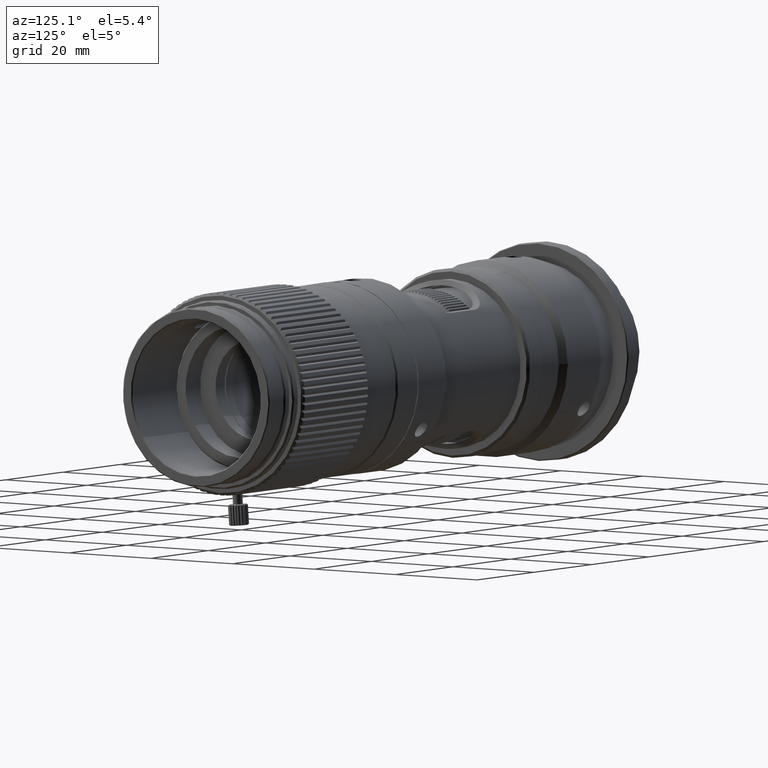
[diagram: clean part render]
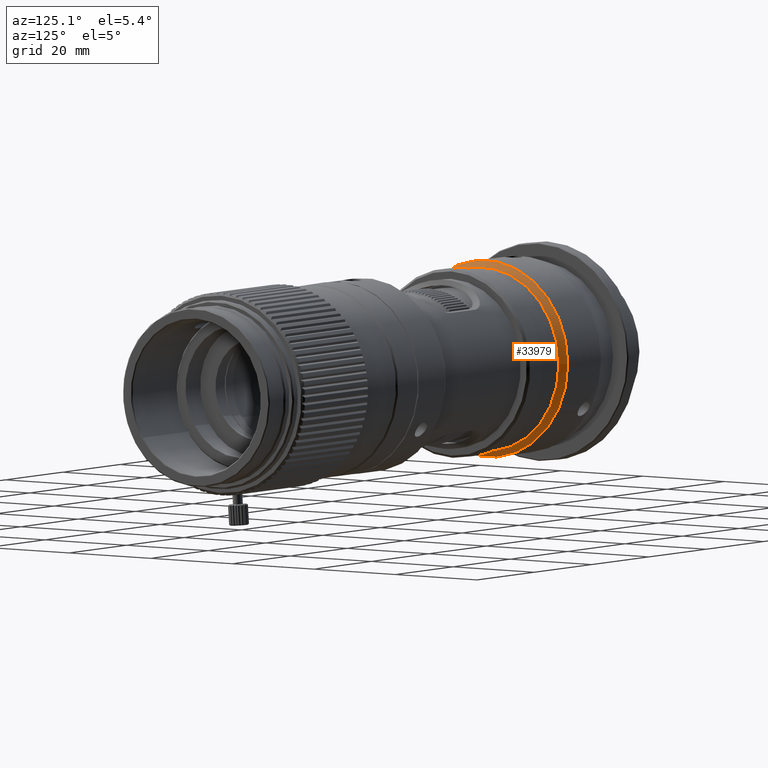
[diagram: same view with one face highlighted and labeled with its STEP entity id]
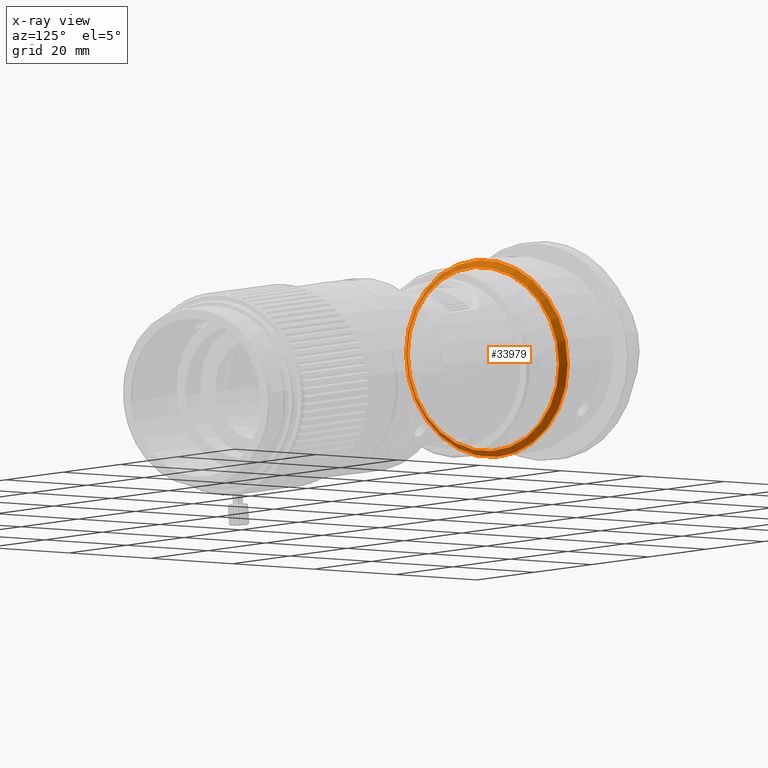
[diagram: x-ray of the same camera — body ghosted, the highlighted face saturated]
A machine part, auxiliary view. The second image highlights one B-rep face of the part: STEP entity #33979.
The next image is the same camera in x-ray: the body ghosted, the highlighted face saturated — about 17% of this face is hidden behind the body in this view.
In plain terms, the highlighted conical surface has half-angle 45 deg.
Its self-contained STEP definition (entity closure, byte-faithful):
#2436 = CARTESIAN_POINT ( 'NONE',  ( 22.98312653004905215, 26.11023935412959673, 15.71905592086952907 ) ) ;
#2550 = CARTESIAN_POINT ( 'NONE',  ( 24.25812653004727437, 26.11023935412959673, 15.71905592086952907 ) ) ;
#3859 = DIRECTION ( 'NONE',  ( 0.000000000000000000, 1.000000000000000000, 0.000000000000000000 ) ) ;
#8387 = DIRECTION ( 'NONE',  ( -1.000000000000000000, 1.750036293545255551E-16, -1.750036293545403216E-16 ) ) ;
#8705 = EDGE_LOOP ( 'NONE', ( #30990 ) ) ;
#10510 = EDGE_CURVE ( 'NONE', #18908, #18908, #33579, .T. ) ;
#12721 = DIRECTION ( 'NONE',  ( 1.000000000000000000, -1.629750780107577912E-16, 2.465190328815661892E-32 ) ) ;
#14270 = CARTESIAN_POINT ( 'NONE',  ( 22.98312653004956729, 45.93523935412824244, 15.71905592086952907 ) ) ;
#14516 = AXIS2_PLACEMENT_3D ( 'NONE', #25239, #17171, #3859 ) ;
#15758 = FACE_OUTER_BOUND ( 'NONE', #25354, .T. ) ;
#17171 = DIRECTION ( 'NONE',  ( 1.000000000000000000, -1.750036293545128840E-16, 2.465190328815661892E-32 ) ) ;
#17265 = CONICAL_SURFACE ( 'NONE', #28476, 19.82499999999916440, 0.7853981633974537191 ) ;
#18908 = VERTEX_POINT ( 'NONE', #32552 ) ;
#19543 = VERTEX_POINT ( 'NONE', #14270 ) ;
#24129 = ORIENTED_EDGE ( 'NONE', *, *, #34649, .T. ) ;
#25239 = CARTESIAN_POINT ( 'NONE',  ( 22.98312653004956729, 26.11023935412959673, 15.71905592086952907 ) ) ;
#25354 = EDGE_LOOP ( 'NONE', ( #24129 ) ) ;
#28476 = AXIS2_PLACEMENT_3D ( 'NONE', #2436, #8387, #31862 ) ;
#29015 = DIRECTION ( 'NONE',  ( -1.870321806983080362E-16, -1.000000000000000000, 0.000000000000000000 ) ) ;
#29659 = AXIS2_PLACEMENT_3D ( 'NONE', #2550, #12721, #29015 ) ;
#30990 = ORIENTED_EDGE ( 'NONE', *, *, #10510, .F. ) ;
#31862 = DIRECTION ( 'NONE',  ( -1.750036293545402477E-16, 0.000000000000000000, 1.000000000000000000 ) ) ;
#32382 = FACE_BOUND ( 'NONE', #8705, .T. ) ;
#32552 = CARTESIAN_POINT ( 'NONE',  ( 24.25812653004727082, 7.560239354129596911, 15.71905592086952907 ) ) ;
#33579 = CIRCLE ( 'NONE', #29659, 18.55000000000000071 ) ;
#33979 = ADVANCED_FACE ( 'NONE', ( #32382, #15758 ), #17265, .T. ) ;
#34647 = CIRCLE ( 'NONE', #14516, 19.82499999999864571 ) ;
#34649 = EDGE_CURVE ( 'NONE', #19543, #19543, #34647, .T. ) ;